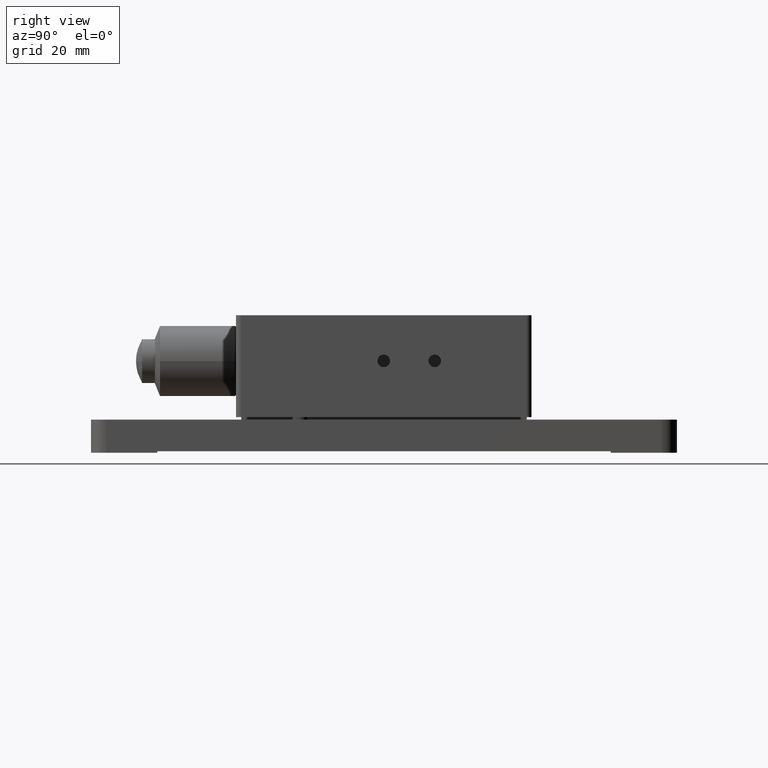
[diagram: clean part render]
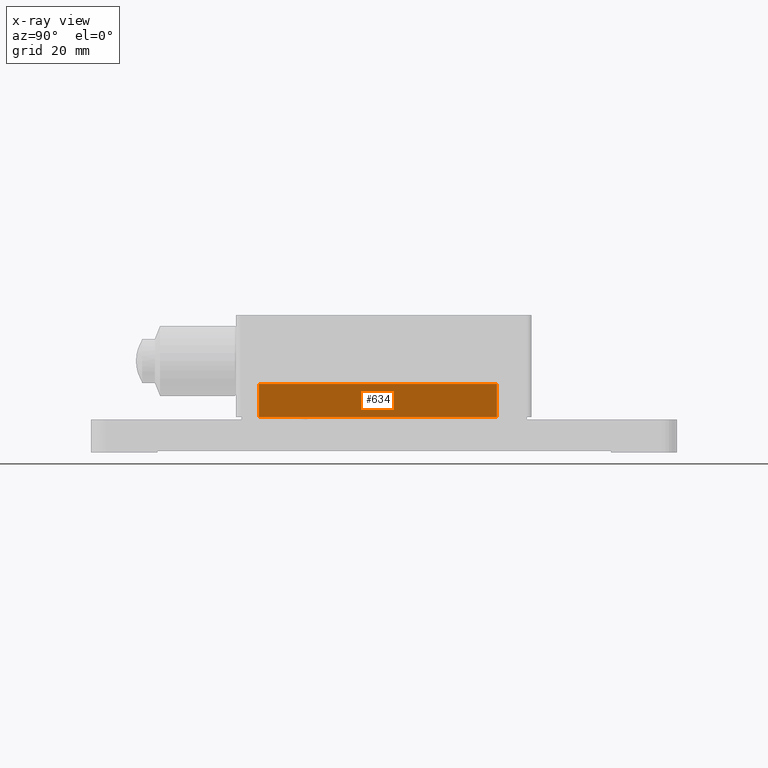
[diagram: x-ray — body ghosted, one internal face saturated and labeled with its STEP entity id]
A machine part, right view, then the same camera in x-ray: the body is ghosted and one INTERNAL B-rep face — a face not visible from any outside direction — is saturated and labeled: STEP entity #634.
In plain terms, the highlighted face is a freeform B-spline surface patch.
Its self-contained STEP definition (entity closure, byte-faithful):
#634=ADVANCED_FACE('',(#1255),#22466,.T.);
#1255=FACE_OUTER_BOUND('',#1965,.T.);
#1965=EDGE_LOOP('',(#3937,#3938,#3939,#3940));
#3937=ORIENTED_EDGE('',*,*,#18829,.F.);
#3938=ORIENTED_EDGE('',*,*,#19024,.T.);
#3939=ORIENTED_EDGE('',*,*,#18886,.F.);
#3940=ORIENTED_EDGE('',*,*,#19020,.F.);
#7031=PCURVE('',#22447,#10437);
#7129=PCURVE('',#22458,#10535);
#7332=PCURVE('',#22823,#10738);
#7343=PCURVE('',#22466,#10749);
#7344=PCURVE('',#22466,#10750);
#7345=PCURVE('',#22466,#10751);
#7346=PCURVE('',#22466,#10752);
#7350=PCURVE('',#22824,#10756);
#10437=DEFINITIONAL_REPRESENTATION('',(#13876),#46445);
#10535=DEFINITIONAL_REPRESENTATION('',(#13979),#46445);
#10738=DEFINITIONAL_REPRESENTATION('',(#14150),#46445);
#10749=DEFINITIONAL_REPRESENTATION('',(#14161),#46445);
#10750=DEFINITIONAL_REPRESENTATION('',(#14163),#46445);
#10751=DEFINITIONAL_REPRESENTATION('',(#14164),#46445);
#10752=DEFINITIONAL_REPRESENTATION('',(#14165),#46445);
#10756=DEFINITIONAL_REPRESENTATION('',(#14170),#46445);
#13875=B_SPLINE_CURVE_WITH_KNOTS('',1,(#34996,#34997),.UNSPECIFIED.,.F.,
 .F.,(2,2),(0.,46.7),.UNSPECIFIED.);
#13876=B_SPLINE_CURVE_WITH_KNOTS('',1,(#34998,#34999),.UNSPECIFIED.,.F.,
 .F.,(2,2),(0.,46.7),.UNSPECIFIED.);
#13978=B_SPLINE_CURVE_WITH_KNOTS('',1,(#35390,#35391),.UNSPECIFIED.,.F.,
 .F.,(2,2),(0.,46.7),.UNSPECIFIED.);
#13979=B_SPLINE_CURVE_WITH_KNOTS('',1,(#35392,#35393),.UNSPECIFIED.,.F.,
 .F.,(2,2),(0.,46.7),.UNSPECIFIED.);
#14149=B_SPLINE_CURVE_WITH_KNOTS('',1,(#36582,#36583),.UNSPECIFIED.,.F.,
 .F.,(2,2),(-6.50000000000001,0.),.UNSPECIFIED.);
#14150=B_SPLINE_CURVE_WITH_KNOTS('',1,(#36584,#36585),.UNSPECIFIED.,.F.,
 .F.,(2,2),(-6.50000000000001,0.),.UNSPECIFIED.);
#14161=B_SPLINE_CURVE_WITH_KNOTS('',1,(#36627,#36628),.UNSPECIFIED.,.F.,
 .F.,(2,2),(0.,46.7),.UNSPECIFIED.);
#14162=B_SPLINE_CURVE_WITH_KNOTS('',1,(#36629,#36630),.UNSPECIFIED.,.F.,
 .F.,(2,2),(-6.5,0.),.UNSPECIFIED.);
#14163=B_SPLINE_CURVE_WITH_KNOTS('',1,(#36631,#36632),.UNSPECIFIED.,.F.,
 .F.,(2,2),(-6.5,0.),.UNSPECIFIED.);
#14164=B_SPLINE_CURVE_WITH_KNOTS('',1,(#36633,#36634),.UNSPECIFIED.,.F.,
 .F.,(2,2),(0.,46.7),.UNSPECIFIED.);
#14165=B_SPLINE_CURVE_WITH_KNOTS('',1,(#36635,#36636),.UNSPECIFIED.,.F.,
 .F.,(2,2),(-6.50000000000001,0.),.UNSPECIFIED.);
#14170=B_SPLINE_CURVE_WITH_KNOTS('',1,(#36645,#36646),.UNSPECIFIED.,.F.,
 .F.,(2,2),(-6.5,0.),.UNSPECIFIED.);
#17092=SURFACE_CURVE('',#13875,(#7031,#7343),.PCURVE_S1.);
#17149=SURFACE_CURVE('',#13978,(#7129,#7345),.PCURVE_S1.);
#17283=SURFACE_CURVE('',#14149,(#7332,#7346),.PCURVE_S1.);
#17287=SURFACE_CURVE('',#14162,(#7344,#7350),.PCURVE_S1.);
#18829=EDGE_CURVE('',#21691,#21692,#17092,.T.);
#18886=EDGE_CURVE('',#21726,#21727,#17149,.T.);
#19020=EDGE_CURVE('',#21692,#21726,#17283,.T.);
#19024=EDGE_CURVE('',#21691,#21727,#17287,.T.);
#21691=VERTEX_POINT('',#28926);
#21692=VERTEX_POINT('',#28927);
#21726=VERTEX_POINT('',#28961);
#21727=VERTEX_POINT('',#28962);
#22447=B_SPLINE_SURFACE_WITH_KNOTS('',1,1,((#25825,#25826),(#25827,#25828)),
 .UNSPECIFIED.,.F.,.F.,.F.,(2,2),(2,2),(-33.4834867175257,30.6439533379569),
(-3.99000000000001,6.69000000000001),.UNSPECIFIED.);
#22458=B_SPLINE_SURFACE_WITH_KNOTS('',1,1,((#25959,#25960),(#25961,#25962)),
 .UNSPECIFIED.,.F.,.F.,.F.,(2,2),(2,2),(-8.2743956043956,61.5656043956044),
(-28.5699999999999,-10.93),.UNSPECIFIED.);
#22466=B_SPLINE_SURFACE_WITH_KNOTS('',1,1,((#26389,#26390),(#26391,#26392)),
 .UNSPECIFIED.,.F.,.F.,.F.,(2,2),(2,2),(-5.79,50.49),(-0.770000000000011,
7.27),.UNSPECIFIED.);
#22823=(
BOUNDED_SURFACE()
B_SPLINE_SURFACE(1,2,((#26367,#26368,#26369,#26370,#26371,#26372,#26373,
#26374,#26375),(#26376,#26377,#26378,#26379,#26380,#26381,#26382,#26383,
#26384)),.UNSPECIFIED.,.F.,.F.,.F.)
B_SPLINE_SURFACE_WITH_KNOTS((2,2),(3,2,2,2,3),(0.,8.04000000000001),(0.,
1.5707963267949,3.14159265358979,4.71238898038469,6.28318530717959),
 .UNSPECIFIED.)
GEOMETRIC_REPRESENTATION_ITEM()
RATIONAL_B_SPLINE_SURFACE(((1.,0.707106781186548,1.,0.707106781186548,1.,
0.707106781186548,1.,0.707106781186548,1.),(1.,0.707106781186548,1.,0.707106781186548,
1.,0.707106781186548,1.,0.707106781186548,1.)))
REPRESENTATION_ITEM('')
SURFACE()
);
#22824=(
BOUNDED_SURFACE()
B_SPLINE_SURFACE(1,2,((#26393,#26394,#26395,#26396,#26397,#26398,#26399,
#26400,#26401),(#26402,#26403,#26404,#26405,#26406,#26407,#26408,#26409,
#26410)),.UNSPECIFIED.,.F.,.F.,.F.)
B_SPLINE_SURFACE_WITH_KNOTS((2,2),(3,2,2,2,3),(0.,8.04),(0.,1.5707963267949,
3.14159265358979,4.71238898038469,6.28318530717959),.UNSPECIFIED.)
GEOMETRIC_REPRESENTATION_ITEM()
RATIONAL_B_SPLINE_SURFACE(((1.,0.707106781186548,1.,0.707106781186548,1.,
0.707106781186548,1.,0.707106781186548,1.),(1.,0.707106781186548,1.,0.707106781186548,
1.,0.707106781186548,1.,0.707106781186548,1.)))
REPRESENTATION_ITEM('')
SURFACE()
);
#25825=CARTESIAN_POINT('',(-26.362950650202,-1.26680358437653,49.1334867175257));
#25826=CARTESIAN_POINT('',(-15.682950650202,-1.26680358437653,49.1334867175257));
#25827=CARTESIAN_POINT('',(-26.362950650202,-1.26680358437653,-14.9939533379569));
#25828=CARTESIAN_POINT('',(-15.682950650202,-1.26680358437653,-14.9939533379569));
#25959=CARTESIAN_POINT('',(-27.9429506502019,-7.76680358437653,50.57));
#25960=CARTESIAN_POINT('',(-10.302950650202,-7.76680358437653,50.57));
#25961=CARTESIAN_POINT('',(-27.9429506502019,-7.76680358437653,-19.27));
#25962=CARTESIAN_POINT('',(-10.302950650202,-7.76680358437653,-19.27));
#26367=CARTESIAN_POINT('',(-19.372950650202,-0.496803584376529,-6.55));
#26368=CARTESIAN_POINT('',(-19.372950650202,-0.496803584376529,-3.55));
#26369=CARTESIAN_POINT('',(-22.372950650202,-0.496803584376529,-3.55));
#26370=CARTESIAN_POINT('',(-25.372950650202,-0.496803584376529,-3.55));
#26371=CARTESIAN_POINT('',(-25.372950650202,-0.496803584376529,-6.55));
#26372=CARTESIAN_POINT('',(-25.372950650202,-0.496803584376529,-9.55));
#26373=CARTESIAN_POINT('',(-22.372950650202,-0.496803584376529,-9.55));
#26374=CARTESIAN_POINT('',(-19.372950650202,-0.496803584376529,-9.55));
#26375=CARTESIAN_POINT('',(-19.372950650202,-0.496803584376529,-6.55));
#26376=CARTESIAN_POINT('',(-19.372950650202,-8.53680358437654,-6.55));
#26377=CARTESIAN_POINT('',(-19.372950650202,-8.53680358437654,-3.55));
#26378=CARTESIAN_POINT('',(-22.372950650202,-8.53680358437654,-3.55));
#26379=CARTESIAN_POINT('',(-25.372950650202,-8.53680358437654,-3.55));
#26380=CARTESIAN_POINT('',(-25.372950650202,-8.53680358437654,-6.55));
#26381=CARTESIAN_POINT('',(-25.372950650202,-8.53680358437654,-9.55));
#26382=CARTESIAN_POINT('',(-22.372950650202,-8.53680358437654,-9.55));
#26383=CARTESIAN_POINT('',(-19.372950650202,-8.53680358437654,-9.55));
#26384=CARTESIAN_POINT('',(-19.372950650202,-8.53680358437654,-6.55));
#26389=CARTESIAN_POINT('',(-25.372950650202,-8.53680358437654,44.94));
#26390=CARTESIAN_POINT('',(-25.372950650202,-0.496803584376529,44.94));
#26391=CARTESIAN_POINT('',(-25.372950650202,-8.53680358437654,-11.34));
#26392=CARTESIAN_POINT('',(-25.372950650202,-0.496803584376529,-11.34));
#26393=CARTESIAN_POINT('',(-19.372950650202,-0.49680358437653,40.15));
#26394=CARTESIAN_POINT('',(-19.372950650202,-0.49680358437653,43.15));
#26395=CARTESIAN_POINT('',(-22.372950650202,-0.49680358437653,43.15));
#26396=CARTESIAN_POINT('',(-25.372950650202,-0.49680358437653,43.15));
#26397=CARTESIAN_POINT('',(-25.372950650202,-0.49680358437653,40.15));
#26398=CARTESIAN_POINT('',(-25.372950650202,-0.49680358437653,37.15));
#26399=CARTESIAN_POINT('',(-22.372950650202,-0.49680358437653,37.15));
#26400=CARTESIAN_POINT('',(-19.372950650202,-0.49680358437653,37.15));
#26401=CARTESIAN_POINT('',(-19.372950650202,-0.49680358437653,40.15));
#26402=CARTESIAN_POINT('',(-19.372950650202,-8.53680358437653,40.15));
#26403=CARTESIAN_POINT('',(-19.372950650202,-8.53680358437653,43.15));
#26404=CARTESIAN_POINT('',(-22.372950650202,-8.53680358437653,43.15));
#26405=CARTESIAN_POINT('',(-25.372950650202,-8.53680358437653,43.15));
#26406=CARTESIAN_POINT('',(-25.372950650202,-8.53680358437653,40.15));
#26407=CARTESIAN_POINT('',(-25.372950650202,-8.53680358437653,37.15));
#26408=CARTESIAN_POINT('',(-22.372950650202,-8.53680358437653,37.15));
#26409=CARTESIAN_POINT('',(-19.372950650202,-8.53680358437653,37.15));
#26410=CARTESIAN_POINT('',(-19.372950650202,-8.53680358437653,40.15));
#28926=CARTESIAN_POINT('',(-25.372950650202,-1.26680358437653,40.15));
#28927=CARTESIAN_POINT('',(-25.372950650202,-1.26680358437653,-6.55));
#28961=CARTESIAN_POINT('',(-25.372950650202,-7.76680358437654,-6.55));
#28962=CARTESIAN_POINT('',(-25.372950650202,-7.76680358437653,40.15));
#34996=CARTESIAN_POINT('',(-25.372950650202,-1.26680358437653,40.15));
#34997=CARTESIAN_POINT('',(-25.372950650202,-1.26680358437653,-6.55));
#34998=CARTESIAN_POINT('',(-24.5,-3.));
#34999=CARTESIAN_POINT('',(22.2,-3.));
#35390=CARTESIAN_POINT('',(-25.372950650202,-7.76680358437654,-6.55));
#35391=CARTESIAN_POINT('',(-25.372950650202,-7.76680358437653,40.15));
#35392=CARTESIAN_POINT('',(48.8456043956044,-26.));
#35393=CARTESIAN_POINT('',(2.14560439560441,-26.0000000000001));
#36582=CARTESIAN_POINT('',(-25.372950650202,-1.26680358437653,-6.55));
#36583=CARTESIAN_POINT('',(-25.372950650202,-7.76680358437654,-6.55));
#36584=CARTESIAN_POINT('',(0.770000000000001,3.14159265358979));
#36585=CARTESIAN_POINT('',(7.27000000000001,3.14159265358979));
#36627=CARTESIAN_POINT('',(-1.,6.5));
#36628=CARTESIAN_POINT('',(45.7,6.5));
#36629=CARTESIAN_POINT('',(-25.372950650202,-1.26680358437653,40.15));
#36630=CARTESIAN_POINT('',(-25.372950650202,-7.76680358437653,40.15));
#36631=CARTESIAN_POINT('',(-1.,6.5));
#36632=CARTESIAN_POINT('',(-1.,1.20312943089127E-32));
#36633=CARTESIAN_POINT('',(45.7,-1.06581410364015E-14));
#36634=CARTESIAN_POINT('',(-1.,1.20312943089127E-32));
#36635=CARTESIAN_POINT('',(45.7,6.5));
#36636=CARTESIAN_POINT('',(45.7,-1.06581410364015E-14));
#36645=CARTESIAN_POINT('',(0.770000000000001,3.14159265358979));
#36646=CARTESIAN_POINT('',(7.27,3.14159265358979));
#46445=(
GEOMETRIC_REPRESENTATION_CONTEXT(2)
PARAMETRIC_REPRESENTATION_CONTEXT()
REPRESENTATION_CONTEXT('pspace','')
);